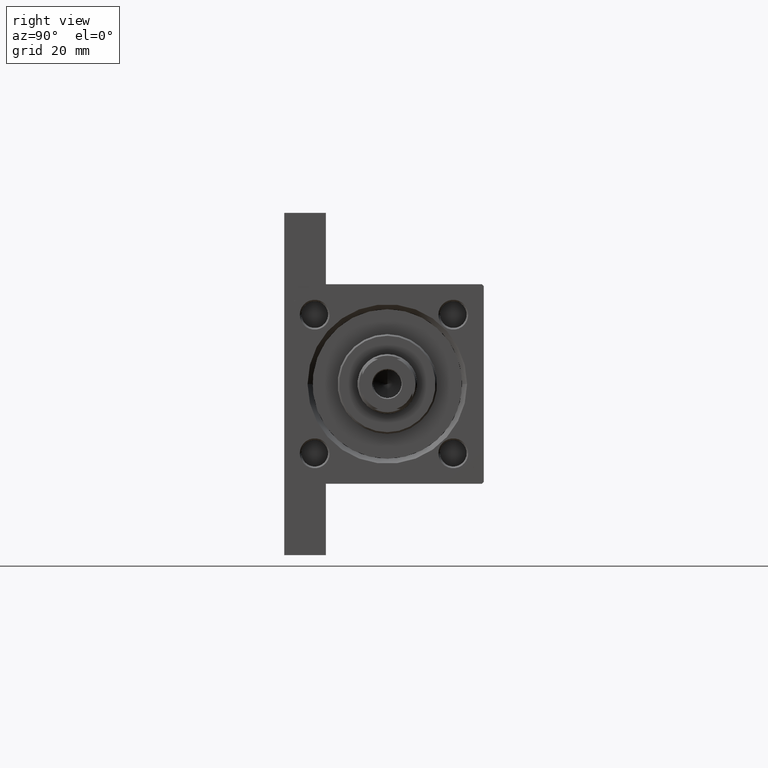
[diagram: clean part render]
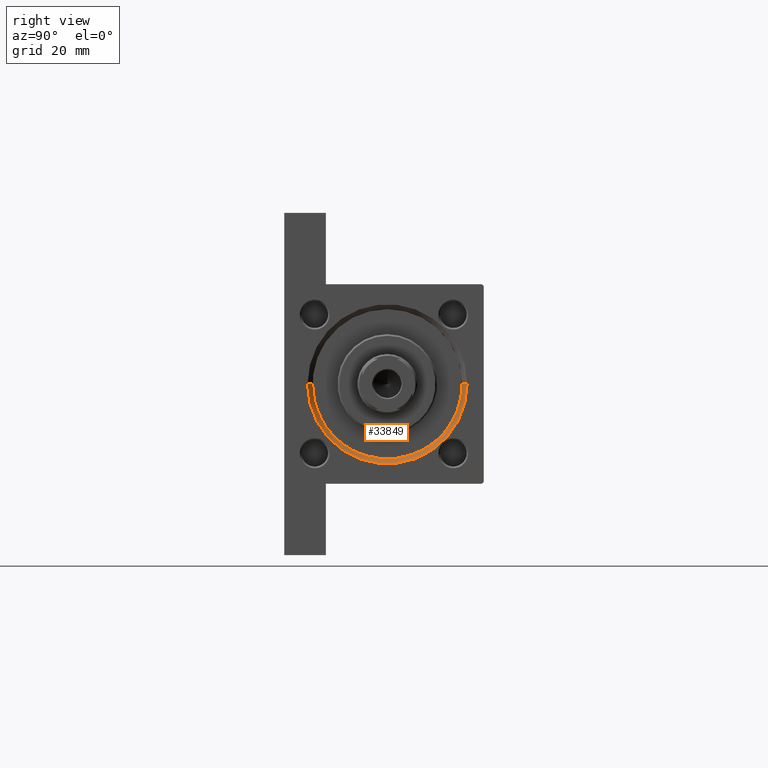
[diagram: same view with one face highlighted and labeled with its STEP entity id]
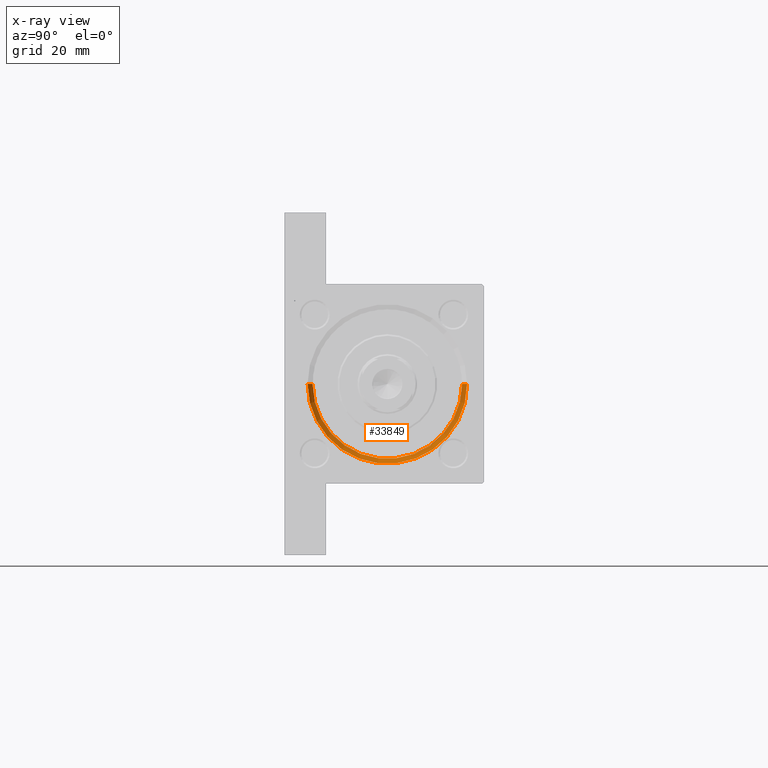
[diagram: x-ray of the same camera — body ghosted, the highlighted face saturated]
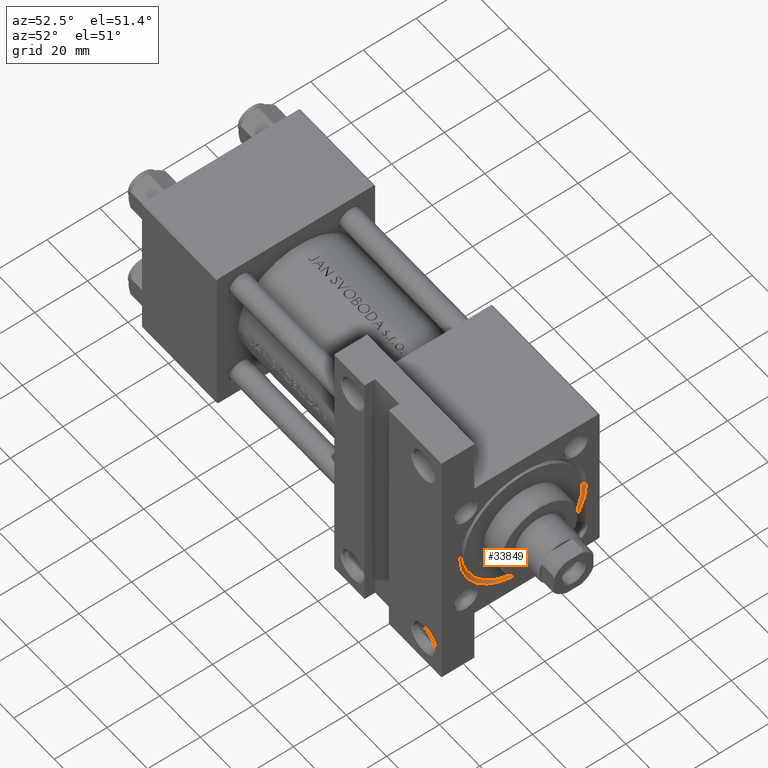
[diagram: same view with one face highlighted and labeled with its STEP entity id]
A machine part, right view. The second image highlights one B-rep face of the part: STEP entity #33849.
The next image is the same camera in x-ray: the body ghosted, the highlighted face saturated — about 0% of this face is hidden behind the body in this view.
A second angle (auxiliary view) of the same face is appended — the face is thin or edge-on in the first view.
In plain terms, the highlighted conical surface has half-angle 45 deg.
Its self-contained STEP definition (entity closure, byte-faithful):
#661 = DIRECTION ( 'NONE',  ( 1.000000000000000000, 0.000000000000000000, 0.000000000000000000 ) ) ;
#2114 = EDGE_CURVE ( 'NONE', #47590, #45806, #43633, .T. ) ;
#3447 = EDGE_CURVE ( 'NONE', #47590, #25519, #44023, .T. ) ;
#3800 = DIRECTION ( 'NONE',  ( 0.000000000000000000, 0.000000000000000000, 1.000000000000000000 ) ) ;
#3864 = VERTEX_POINT ( 'NONE', #11585 ) ;
#4316 = CONICAL_SURFACE ( 'NONE', #23218, 22.50000000000000355, 0.7853981633974415066 ) ;
#4341 = FACE_OUTER_BOUND ( 'NONE', #36685, .T. ) ;
#6781 = ORIENTED_EDGE ( 'NONE', *, *, #34899, .F. ) ;
#9242 = LINE ( 'NONE', #24978, #10255 ) ;
#10255 = VECTOR ( 'NONE', #13915, 1000.000000000000000 ) ;
#11585 = CARTESIAN_POINT ( 'NONE',  ( 148.0000000000000000, 2.939152317953652628E-15, 25.00000000000004619 ) ) ;
#13915 = DIRECTION ( 'NONE',  ( 0.7071067811865524577, 8.659560562354874926E-17, 0.7071067811865426878 ) ) ;
#15090 = ORIENTED_EDGE ( 'NONE', *, *, #2114, .T. ) ;
#16079 = ORIENTED_EDGE ( 'NONE', *, *, #3447, .F. ) ;
#20701 = DIRECTION ( 'NONE',  ( 0.7071067811865524577, 0.000000000000000000, -0.7071067811865426878 ) ) ;
#21018 = CARTESIAN_POINT ( 'NONE',  ( 148.0000000000000000, 0.000000000000000000, -23.00000000000003197 ) ) ;
#22290 = CARTESIAN_POINT ( 'NONE',  ( 148.0000000000000000, 0.000000000000000000, 1.000000000000007772 ) ) ;
#23218 = AXIS2_PLACEMENT_3D ( 'NONE', #34431, #661, #45781 ) ;
#24263 = CARTESIAN_POINT ( 'NONE',  ( 146.4999999999999432, 0.000000000000000000, -21.49999999999999645 ) ) ;
#24559 = EDGE_CURVE ( 'NONE', #25519, #3864, #9242, .T. ) ;
#24978 = CARTESIAN_POINT ( 'NONE',  ( 146.4999999999999432, 2.755455298081545172E-15, 23.50000000000001066 ) ) ;
#25519 = VERTEX_POINT ( 'NONE', #40227 ) ;
#26180 = DIRECTION ( 'NONE',  ( 0.000000000000000000, 0.000000000000000000, 1.000000000000000000 ) ) ;
#26233 = DIRECTION ( 'NONE',  ( -1.000000000000000000, 0.000000000000000000, -0.000000000000000000 ) ) ;
#26381 = AXIS2_PLACEMENT_3D ( 'NONE', #22290, #26233, #3800 ) ;
#27852 = CARTESIAN_POINT ( 'NONE',  ( 146.4999999999999432, 0.000000000000000000, -21.49999999999999645 ) ) ;
#30120 = DIRECTION ( 'NONE',  ( 1.000000000000000000, 0.000000000000000000, 0.000000000000000000 ) ) ;
#30454 = VECTOR ( 'NONE', #20701, 1000.000000000000000 ) ;
#32977 = AXIS2_PLACEMENT_3D ( 'NONE', #37291, #30120, #26180 ) ;
#33849 = ADVANCED_FACE ( 'NONE', ( #4341 ), #4316, .F. ) ;
#34431 = CARTESIAN_POINT ( 'NONE',  ( 146.4999999999999432, 0.000000000000000000, 1.000000000000007772 ) ) ;
#34899 = EDGE_CURVE ( 'NONE', #3864, #45806, #43702, .T. ) ;
#36685 = EDGE_LOOP ( 'NONE', ( #39599, #16079, #15090, #6781 ) ) ;
#37291 = CARTESIAN_POINT ( 'NONE',  ( 146.4999999999999432, 0.000000000000000000, 1.000000000000007772 ) ) ;
#39599 = ORIENTED_EDGE ( 'NONE', *, *, #24559, .F. ) ;
#40227 = CARTESIAN_POINT ( 'NONE',  ( 146.4999999999999432, 2.755455298081545172E-15, 23.50000000000001066 ) ) ;
#43633 = LINE ( 'NONE', #27852, #30454 ) ;
#43702 = CIRCLE ( 'NONE', #26381, 24.00000000000003908 ) ;
#44023 = CIRCLE ( 'NONE', #32977, 22.50000000000000355 ) ;
#45781 = DIRECTION ( 'NONE',  ( 0.000000000000000000, 0.000000000000000000, -1.000000000000000000 ) ) ;
#45806 = VERTEX_POINT ( 'NONE', #21018 ) ;
#47590 = VERTEX_POINT ( 'NONE', #24263 ) ;